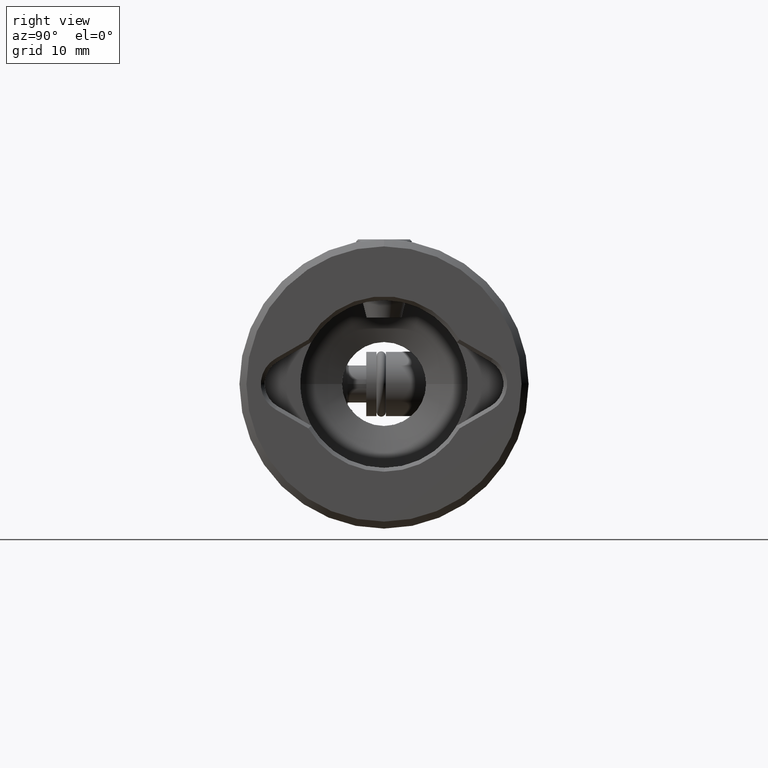
[diagram: clean part render]
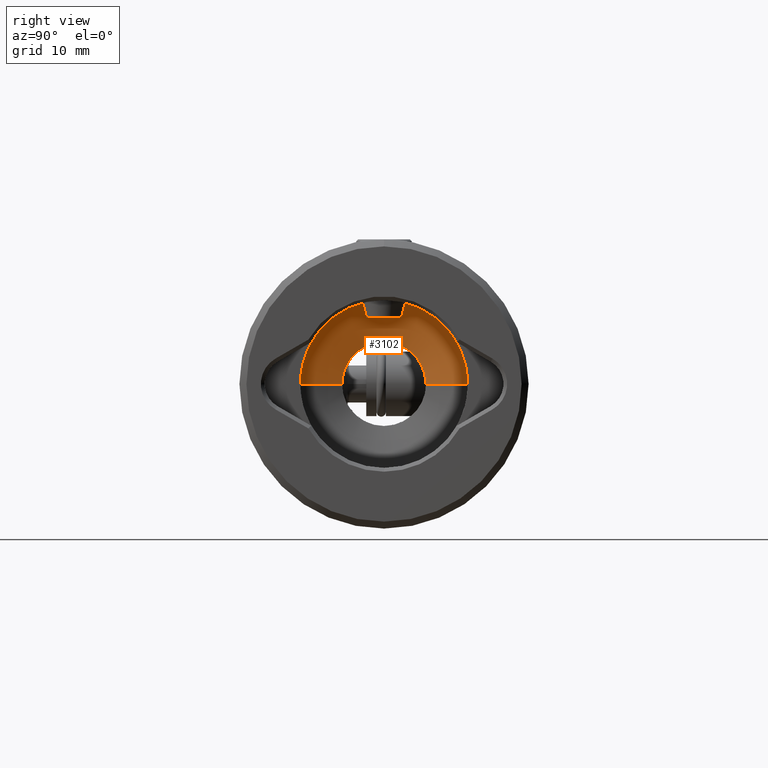
[diagram: same view with one face highlighted and labeled with its STEP entity id]
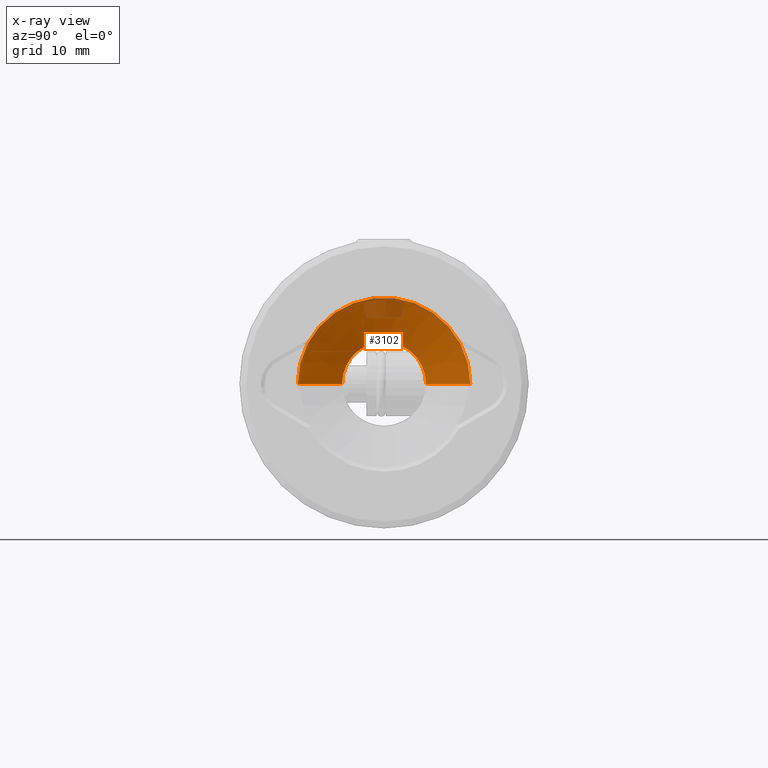
[diagram: x-ray of the same camera — body ghosted, the highlighted face saturated]
A machine part, right view. The second image highlights one B-rep face of the part: STEP entity #3102.
The next image is the same camera in x-ray: the body ghosted, the highlighted face saturated — about 14% of this face is hidden behind the body in this view.
In plain terms, the highlighted conical surface has half-angle 70 deg.
Its self-contained STEP definition (entity closure, byte-faithful):
#77 = DIRECTION ( 'NONE',  ( -4.163335914195346981E-17, 1.000000000000000000, 0.0000000000000000000 ) ) ;
#88 = CONICAL_SURFACE ( 'NONE', #2184, 9.250000000000046185, 1.221730476396036824 ) ;
#231 = ORIENTED_EDGE ( 'NONE', *, *, #4399, .F. ) ;
#347 = CARTESIAN_POINT ( 'NONE',  ( 1.518322251114097979E-15, -9.250000000000051514, 22.00000000000000355 ) ) ;
#360 = CARTESIAN_POINT ( 'NONE',  ( -3.846931822233519179E-16, 9.250000000000026645, 22.00000000000000000 ) ) ;
#516 = VERTEX_POINT ( 'NONE', #4202 ) ;
#555 = FACE_OUTER_BOUND ( 'NONE', #4321, .T. ) ;
#578 = VERTEX_POINT ( 'NONE', #3540 ) ;
#719 = DIRECTION ( 'NONE',  ( 4.163335914195348213E-17, -1.000000000000000000, 3.750753461571456210E-16 ) ) ;
#772 = LINE ( 'NONE', #2558, #3507 ) ;
#808 = VERTEX_POINT ( 'NONE', #4243 ) ;
#853 = CARTESIAN_POINT ( 'NONE',  ( 4.480330352669489172E-19, -6.195149347456505580E-15, 23.72885861276442654 ) ) ;
#1154 = CARTESIAN_POINT ( 'NONE',  ( 1.128605729952234070E-15, -4.500000000000005329, 23.72885861276442654 ) ) ;
#1216 = DIRECTION ( 'NONE',  ( -1.888135635086248669E-20, 1.494367506785266647E-16, -1.000000000000000000 ) ) ;
#1253 = DIRECTION ( 'NONE',  ( -4.163335914195346981E-17, 1.000000000000000000, 0.0000000000000000000 ) ) ;
#1508 = LINE ( 'NONE', #347, #2510 ) ;
#1616 = DIRECTION ( 'NONE',  ( -1.888135635086248669E-20, 1.494367506785266647E-16, -1.000000000000000000 ) ) ;
#1735 = DIRECTION ( 'NONE',  ( -4.163335914195348213E-17, 1.000000000000000000, -3.750753461571456210E-16 ) ) ;
#1746 = EDGE_CURVE ( 'NONE', #808, #4127, #3908, .T. ) ;
#1862 = VERTEX_POINT ( 'NONE', #1154 ) ;
#1943 = DIRECTION ( 'NONE',  ( -1.888135635086248669E-20, 1.494367506785266647E-16, -1.000000000000000000 ) ) ;
#2040 = ORIENTED_EDGE ( 'NONE', *, *, #3502, .F. ) ;
#2184 = AXIS2_PLACEMENT_3D ( 'NONE', #3736, #1616, #1735 ) ;
#2287 = CARTESIAN_POINT ( 'NONE',  ( 4.480330352669489172E-19, -6.195149347456505580E-15, 23.72885861276442654 ) ) ;
#2510 = VECTOR ( 'NONE', #4216, 1000.000000000000000 ) ;
#2558 = CARTESIAN_POINT ( 'NONE',  ( -3.846931822233525096E-16, 9.250000000000040856, 21.99999999999999645 ) ) ;
#2572 = DIRECTION ( 'NONE',  ( -3.912901816842862185E-17, 0.9396926207859109814, -0.3420201433256614965 ) ) ;
#2862 = CARTESIAN_POINT ( 'NONE',  ( 4.153898397190862786E-19, -5.936794333982405706E-15, 22.00000000000000000 ) ) ;
#2972 = EDGE_CURVE ( 'NONE', #516, #578, #3675, .T. ) ;
#3009 = ORIENTED_EDGE ( 'NONE', *, *, #2972, .F. ) ;
#3102 = ADVANCED_FACE ( 'NONE', ( #555 ), #88, .F. ) ;
#3155 = ORIENTED_EDGE ( 'NONE', *, *, #4196, .T. ) ;
#3301 = ORIENTED_EDGE ( 'NONE', *, *, #1746, .F. ) ;
#3502 = EDGE_CURVE ( 'NONE', #1862, #808, #1508, .T. ) ;
#3507 = VECTOR ( 'NONE', #2572, 1000.000000000000114 ) ;
#3540 = CARTESIAN_POINT ( 'NONE',  ( 4.500000000000000000, -7.797928678800833136E-15, 23.72885861276442654 ) ) ;
#3547 = AXIS2_PLACEMENT_3D ( 'NONE', #2862, #3931, #719 ) ;
#3675 = CIRCLE ( 'NONE', #4463, 4.500000000000023981 ) ;
#3736 = CARTESIAN_POINT ( 'NONE',  ( 4.153898397190862786E-19, -5.936794333982405706E-15, 22.00000000000000000 ) ) ;
#3908 = CIRCLE ( 'NONE', #3547, 9.250000000000046185 ) ;
#3931 = DIRECTION ( 'NONE',  ( 1.888135635086248669E-20, -1.494367506785266647E-16, 1.000000000000000000 ) ) ;
#4127 = VERTEX_POINT ( 'NONE', #360 ) ;
#4155 = CIRCLE ( 'NONE', #4272, 4.500000000000023981 ) ;
#4196 = EDGE_CURVE ( 'NONE', #516, #4127, #772, .T. ) ;
#4202 = CARTESIAN_POINT ( 'NONE',  ( -1.869020831035246764E-16, 4.500000000000017764, 23.72885861276442654 ) ) ;
#4216 = DIRECTION ( 'NONE',  ( 1.541952585828033832E-16, -0.9396926207859110924, -0.3420201433256612189 ) ) ;
#4243 = CARTESIAN_POINT ( 'NONE',  ( 1.518322251114100148E-15, -9.250000000000065725, 22.00000000000000000 ) ) ;
#4272 = AXIS2_PLACEMENT_3D ( 'NONE', #2287, #1943, #1253 ) ;
#4321 = EDGE_LOOP ( 'NONE', ( #2040, #231, #3009, #3155, #3301 ) ) ;
#4399 = EDGE_CURVE ( 'NONE', #578, #1862, #4155, .T. ) ;
#4463 = AXIS2_PLACEMENT_3D ( 'NONE', #853, #1216, #77 ) ;